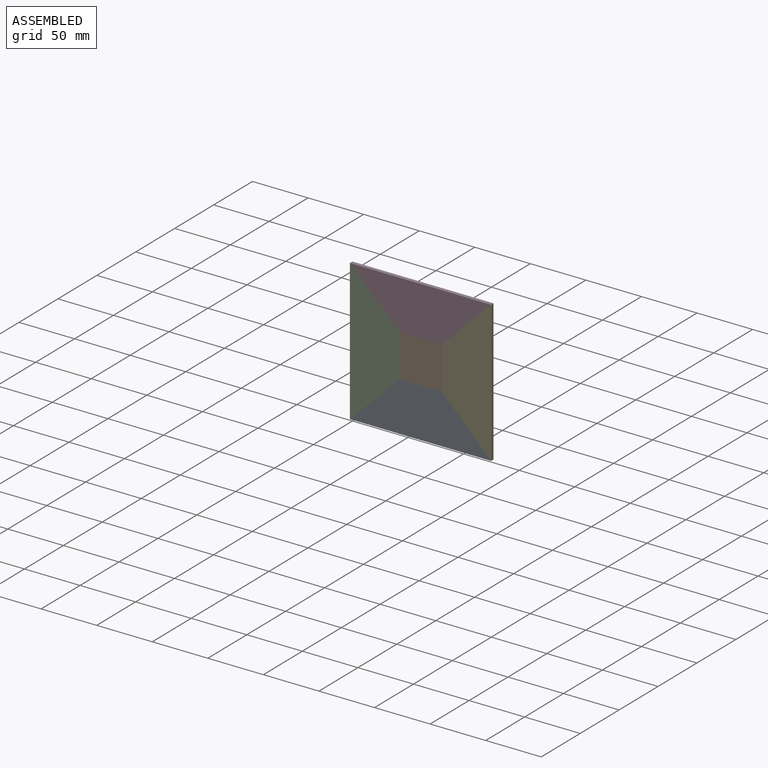
[diagram: assembled view]
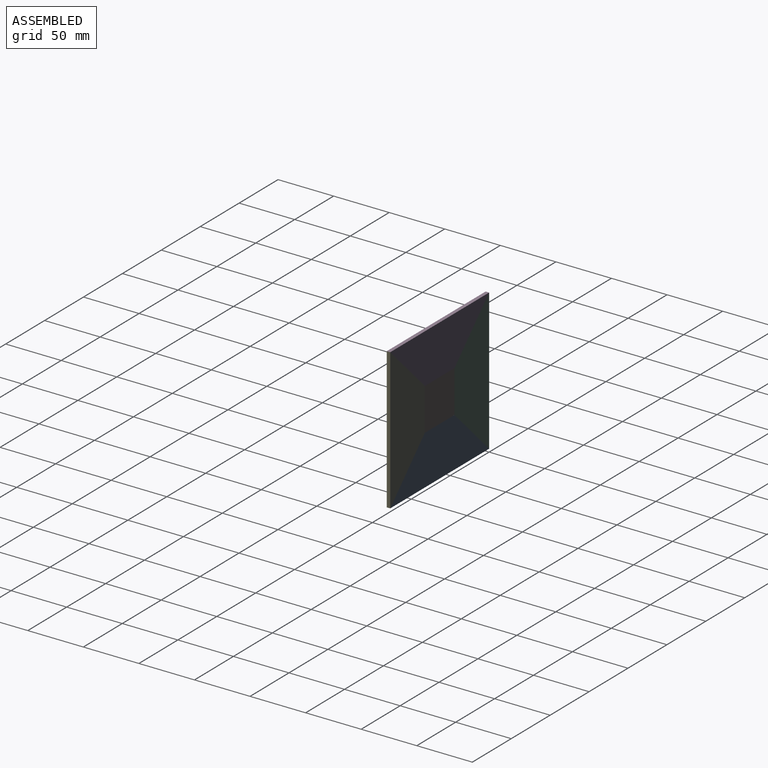
[diagram: assembled view, second angle]
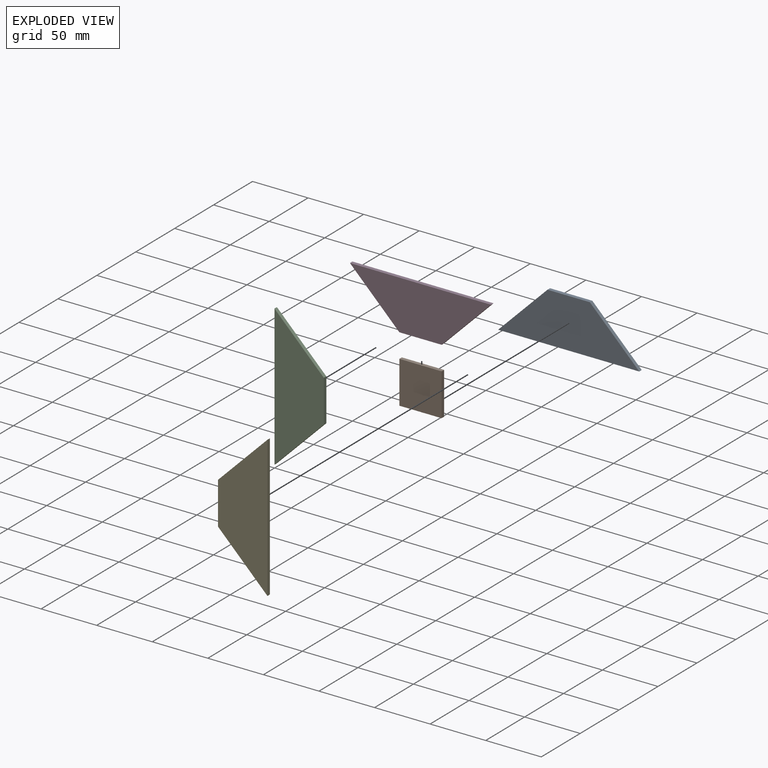
[diagram: exploded view]
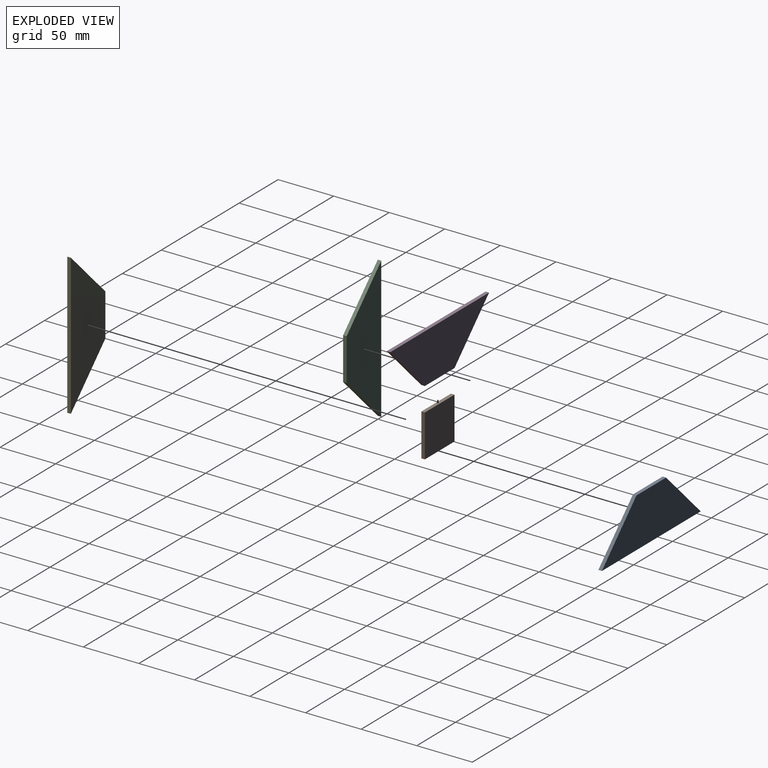
[diagram: exploded view, second angle]
ASSEMBLY  parts=5 mates=4
PART A: 6 faces, bbox 127x3.2x44.5 mm
  f0: plane 38.1x3.18mm, normal (0,0,1), area 121mm2, adj f1,f3,f4,f5
  f1: plane 44.45x44.45mm, normal (-0.71,0,0.71), area 199.6mm2, adj f0,f2,f4,f5
  f2: plane 127x3.18mm, normal (0,0,-1), area 403.2mm2, adj f1,f3,f4,f5
  f3: plane 44.45x44.45mm, normal (0.71,0,0.71), area 199.6mm2, adj f0,f2,f4,f5
  f4: plane 127x44.45mm, normal (0,-1,0), area 3669.3mm2, adj f0,f1,f2,f3
  f5: plane 127x44.45mm, normal (0,1,0), area 3669.3mm2, adj f0,f1,f2,f3
PART B: 6 faces, bbox 38.1x3.2x38.1 mm
  f0: plane 38.1x3.18mm, normal (1,0,0), area 121mm2, adj f1,f3,f4,f5
  f1: plane 38.1x3.18mm, normal (0,0,1), area 121mm2, adj f0,f2,f4,f5
  f2: plane 38.1x3.18mm, normal (-1,0,0), area 121mm2, adj f1,f3,f4,f5
  f3: plane 38.1x3.18mm, normal (0,0,-1), area 121mm2, adj f0,f2,f4,f5
  f4: plane 38.1x38.1mm, normal (0,-1,0), area 1451.6mm2, adj f0,f1,f2,f3
  f5: plane 38.1x38.1mm, normal (0,1,0), area 1451.6mm2, adj f0,f1,f2,f3
PART C: same geometry as A
PART D: same geometry as A
PART E: same geometry as A
PLACE A at identity
PLACE B t=(63.5,0,63.5)mm
PLACE C rot(axis=(0,1,0),90deg) t=(0,0,127)mm
PLACE D rot(axis=(0,-1,0),180deg) t=(127,0,127)mm
PLACE E rot(axis=(0,-1,0),90deg) t=(127,0,0)mm
MATE fastened A.f4 <-> B.f4  axis (0,-1,0) through (63.5,-3.18,44.45)mm
MATE fastened E.f4 <-> B.f4  axis (0,-1,0) through (82.55,-3.18,63.5)mm
MATE fastened D.f4 <-> B.f4  axis (0,-1,0) through (63.5,-3.18,82.55)mm
MATE fastened B.f4 <-> C.f4  axis (0,-1,0) through (44.45,-3.18,63.5)mm
